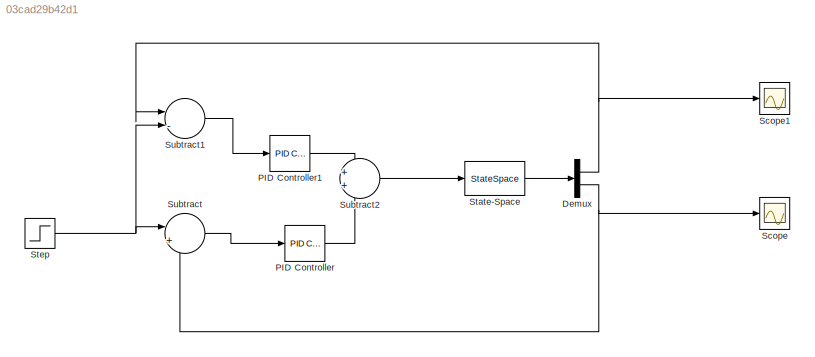
MODEL slx_03cad29b42d1
KIND model
CONFIG AbsTol = auto
CONFIG EnableMultiTasking = off
CONFIG FixedStep = auto
CONFIG MaxStep = auto
CONFIG MinStep = auto
CONFIG RelTol = 1e-3
CONFIG SampleTimeConstraint = Unconstrained
CONFIG SolverName = VariableStepAuto
CONFIG StartTime = 0.0
CONFIG StopTime = 1
BLOCK [Demux] Demux
  Outputs = 2
BLOCK [Reference] PID Controller  REF=slpidlib/PID Controller
  LibrarySourceBlock = simulink/Continuous/PID Controller
  SourceBlock = slpidlib/PID Controller
  SourceType = PID 1dof
BLOCK [Reference] PID Controller1  REF=slpidlib/PID Controller
  LibrarySourceBlock = simulink/Continuous/PID Controller
  SourceBlock = slpidlib/PID Controller
  SourceType = PID 1dof
BLOCK [Scope] Scope
  Floating = off
  NumInputPorts = 1
  ScopeSpecificationString = Simulink.scopes.TimeScopeBlockCfg('CurrentConfiguration', extmgr.ConfigurationSet(extmgr.Configuration('Core','General UI',true),extmgr.Configuration('Core','Source UI',true),extmgr.Configuration('Sources','WiredSimulink',true),extmgr.Configuration('Visuals','Time Domain',true,'SerializedDisplays',{struct('MinYLimReal','-114.88326','MaxYLimReal','13.32504','YLabelReal','','MinYLimMag',' 0.00000','...<+1368ch>
BLOCK [Scope] Scope1
  Floating = off
  NumInputPorts = 1
  ScopeSpecificationString = Simulink.scopes.TimeScopeBlockCfg('CurrentConfiguration', extmgr.ConfigurationSet(extmgr.Configuration('Core','General UI',true),extmgr.Configuration('Core','Source UI',true),extmgr.Configuration('Sources','WiredSimulink',true,'DataLoggingVariableName','ScopeData1'),extmgr.Configuration('Visuals','Time Domain',true,'SerializedDisplays',{struct('MinYLimReal','-15.31835','MaxYLimReal','142.86513','Y...<+1376ch>
BLOCK [StateSpace] State-Space
  A = A_eval
  B = B_eval
  C = [0 0 1 0 0 0;0 0 0 0 1 0]
  D = zeros(2,1)
  InitialCondition = [0 0 0.5 0 0.5 0]
BLOCK [Step] Step
  After = 0
  Before = 0.5
  SampleTime = 0
BLOCK [Sum] Subtract
  Inputs = |+-
BLOCK [Sum] Subtract1
  Inputs = |-+
BLOCK [Sum] Subtract2
NET Demux:1 -> Scope1:1, Subtract1:1
NET Demux:2 -> Scope:1, Subtract:2
LINE PID Controller1:1 -> Subtract2:1
LINE PID Controller:1 -> Subtract2:2
LINE State-Space:1 -> Demux:1
NET Step:1 -> Subtract1:2, Subtract:1
LINE Subtract1:1 -> PID Controller1:1
LINE Subtract2:1 -> State-Space:1
LINE Subtract:1 -> PID Controller:1
note: NET lines group one-source signal fan-out (src -> all destinations, sorted); 1:1 wires keep LINE
